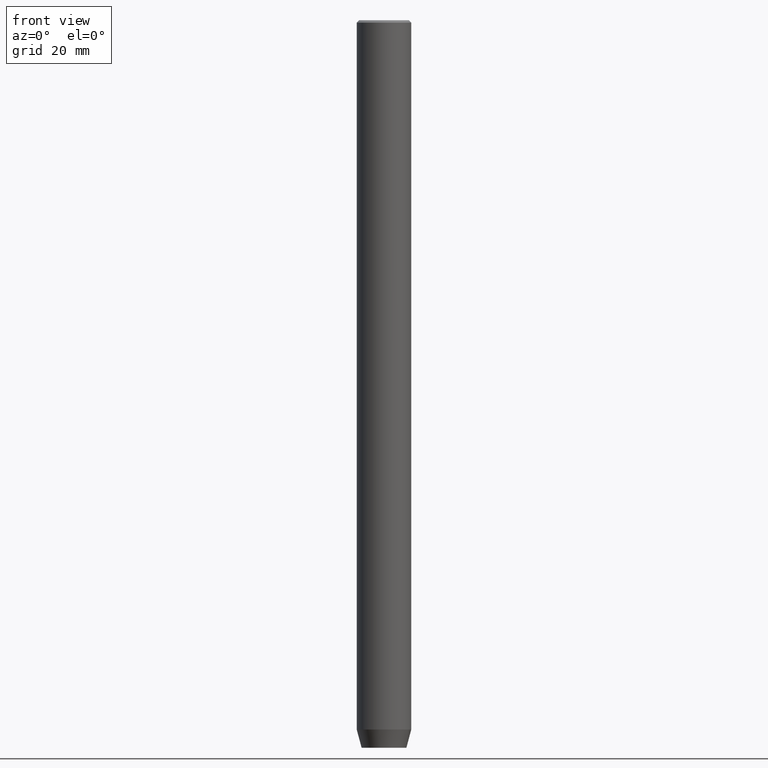
[diagram: clean part render]
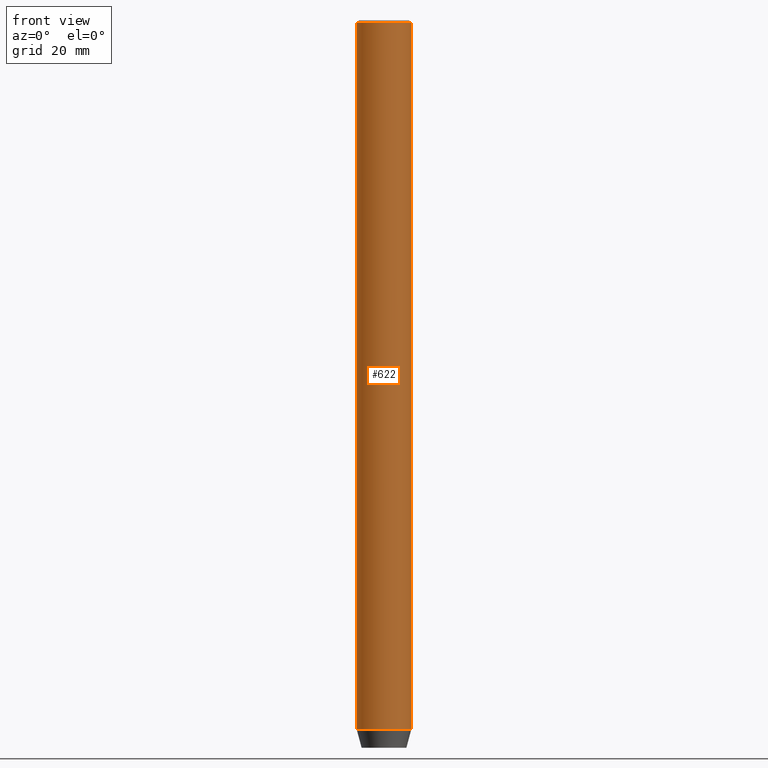
[diagram: same view with one face highlighted and labeled with its STEP entity id]
A machine part, front view. The second image highlights one B-rep face of the part: STEP entity #622.
In plain terms, the highlighted cylindrical surface (edge-blend (fillet) strip) has radius 6 mm, axis along (-0, -0, 1).
Its self-contained STEP definition (entity closure, byte-faithful):
#13 = CIRCLE ( 'NONE', #596, 6.000000000000000000 ) ;
#40 = LINE ( 'NONE', #582, #280 ) ;
#43 = DIRECTION ( 'NONE',  ( -0.000000000000000000, -0.000000000000000000, 1.000000000000000000 ) ) ;
#46 = ORIENTED_EDGE ( 'NONE', *, *, #184, .T. ) ;
#54 = ORIENTED_EDGE ( 'NONE', *, *, #503, .T. ) ;
#60 = CYLINDRICAL_SURFACE ( 'NONE', #180, 6.000000000000000000 ) ;
#62 = FACE_OUTER_BOUND ( 'NONE', #86, .T. ) ;
#74 = CARTESIAN_POINT ( 'NONE',  ( 0.000000000000000000, 0.000000000000000000, -0.4999999999999891753 ) ) ;
#80 = AXIS2_PLACEMENT_3D ( 'NONE', #74, #85, #414 ) ;
#85 = DIRECTION ( 'NONE',  ( 0.000000000000000000, 0.000000000000000000, -1.000000000000000000 ) ) ;
#86 = EDGE_LOOP ( 'NONE', ( #284, #54, #122, #46 ) ) ;
#98 = CARTESIAN_POINT ( 'NONE',  ( -6.000000000000000000, 7.347880794884119736E-16, -0.4999999999999891753 ) ) ;
#114 = EDGE_CURVE ( 'NONE', #222, #389, #553, .T. ) ;
#122 = ORIENTED_EDGE ( 'NONE', *, *, #464, .T. ) ;
#175 = VERTEX_POINT ( 'NONE', #557 ) ;
#180 = AXIS2_PLACEMENT_3D ( 'NONE', #244, #253, #639 ) ;
#184 = EDGE_CURVE ( 'NONE', #566, #389, #209, .T. ) ;
#202 = CARTESIAN_POINT ( 'NONE',  ( 6.000000000000000000, 0.000000000000000000, -0.4999999999999891753 ) ) ;
#209 = CIRCLE ( 'NONE', #80, 6.000000000000000000 ) ;
#214 = CARTESIAN_POINT ( 'NONE',  ( -6.000000000000000000, 7.347880794884119736E-16, -156.0000000000000000 ) ) ;
#222 = VERTEX_POINT ( 'NONE', #214 ) ;
#244 = CARTESIAN_POINT ( 'NONE',  ( 0.000000000000000000, 0.000000000000000000, 0.000000000000000000 ) ) ;
#253 = DIRECTION ( 'NONE',  ( -0.000000000000000000, -0.000000000000000000, 1.000000000000000000 ) ) ;
#268 = VECTOR ( 'NONE', #602, 1000.000000000000000 ) ;
#280 = VECTOR ( 'NONE', #43, 1000.000000000000000 ) ;
#284 = ORIENTED_EDGE ( 'NONE', *, *, #114, .F. ) ;
#383 = CARTESIAN_POINT ( 'NONE',  ( 0.000000000000000000, 0.000000000000000000, -156.0000000000000000 ) ) ;
#389 = VERTEX_POINT ( 'NONE', #98 ) ;
#414 = DIRECTION ( 'NONE',  ( 1.000000000000000000, 0.000000000000000000, 0.000000000000000000 ) ) ;
#447 = CARTESIAN_POINT ( 'NONE',  ( -6.000000000000000000, 7.347880794884119736E-16, 0.000000000000000000 ) ) ;
#464 = EDGE_CURVE ( 'NONE', #175, #566, #40, .T. ) ;
#503 = EDGE_CURVE ( 'NONE', #222, #175, #13, .T. ) ;
#553 = LINE ( 'NONE', #447, #268 ) ;
#557 = CARTESIAN_POINT ( 'NONE',  ( 6.000000000000000000, 0.000000000000000000, -156.0000000000000000 ) ) ;
#566 = VERTEX_POINT ( 'NONE', #202 ) ;
#582 = CARTESIAN_POINT ( 'NONE',  ( 6.000000000000000000, 0.000000000000000000, 0.000000000000000000 ) ) ;
#584 = DIRECTION ( 'NONE',  ( -0.000000000000000000, -0.000000000000000000, 1.000000000000000000 ) ) ;
#596 = AXIS2_PLACEMENT_3D ( 'NONE', #383, #584, #634 ) ;
#602 = DIRECTION ( 'NONE',  ( -0.000000000000000000, -0.000000000000000000, 1.000000000000000000 ) ) ;
#622 = ADVANCED_FACE ( 'NONE', ( #62 ), #60, .T. ) ;
#634 = DIRECTION ( 'NONE',  ( 1.000000000000000000, 0.000000000000000000, 0.000000000000000000 ) ) ;
#639 = DIRECTION ( 'NONE',  ( 1.000000000000000000, 0.000000000000000000, 0.000000000000000000 ) ) ;